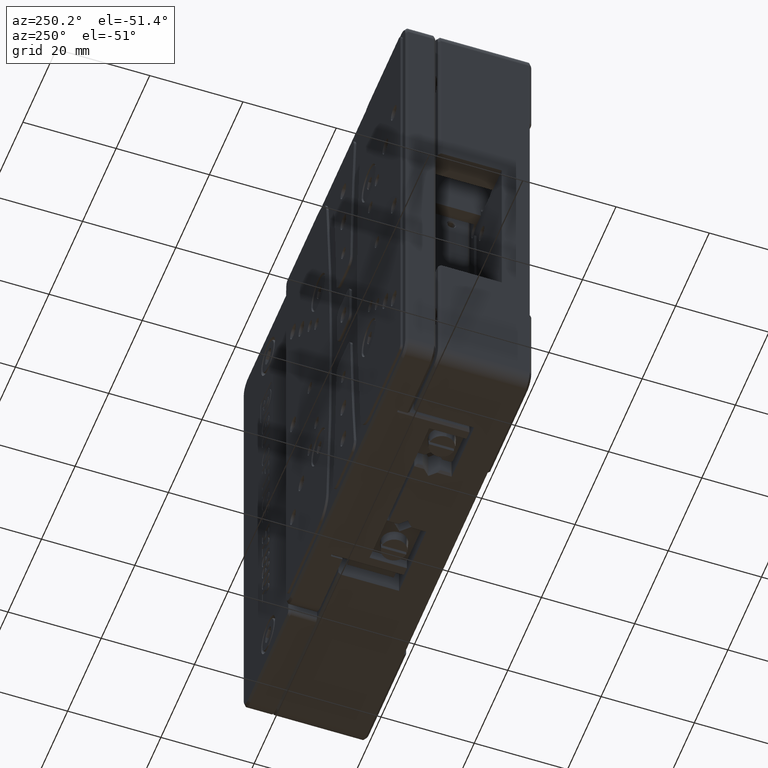
[diagram: clean part render]
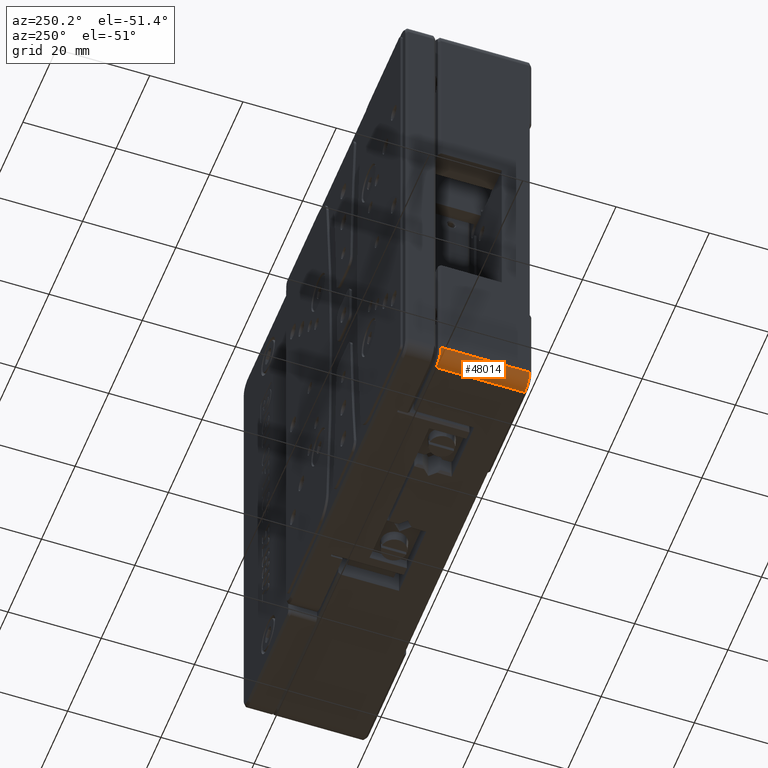
[diagram: same view with one face highlighted and labeled with its STEP entity id]
A machine part, auxiliary view. The second image highlights one B-rep face of the part: STEP entity #48014.
In plain terms, the highlighted cylindrical surface (edge-blend (fillet) strip) has radius 3 mm, axis along (0, -1, 0).
Its self-contained STEP definition (entity closure, byte-faithful):
#351 = CARTESIAN_POINT ( 'NONE',  ( -50.00000178658219596, -0.5000242090757349711, -49.49999999379789983 ) ) ;
#988 = EDGE_CURVE ( 'NONE', #31714, #31601, #32405, .T. ) ;
#1163 = ORIENTED_EDGE ( 'NONE', *, *, #4295, .F. ) ;
#1578 = CARTESIAN_POINT ( 'NONE',  ( -49.92191803106838677, -0.5000488344385002337, -50.28524364779969602 ) ) ;
#2760 = CARTESIAN_POINT ( 'NONE',  ( -48.51086639598516825, -19.49996993934980694, -52.12137556940650285 ) ) ;
#2961 = CARTESIAN_POINT ( 'NONE',  ( -47.39270153919131445, -19.49996993934980694, -52.50001877386046800 ) ) ;
#2988 = CARTESIAN_POINT ( 'NONE',  ( -47.00000003169999729, -10.00000000000000000, -52.50000000000000000 ) ) ;
#4295 = EDGE_CURVE ( 'NONE', #47800, #9612, #16811, .T. ) ;
#4788 = CARTESIAN_POINT ( 'NONE',  ( -47.00000002153660006, -19.49997753036515036, -52.50000372375050262 ) ) ;
#8767 = CARTESIAN_POINT ( 'NONE',  ( -50.00000000000001421, -0.5000488344385001227, -49.89269907905705281 ) ) ;
#9493 = CARTESIAN_POINT ( 'NONE',  ( -50.00000178658219596, -0.5000242090757349711, -49.49999999379789983 ) ) ;
#9612 = VERTEX_POINT ( 'NONE', #4788 ) ;
#9953 = VECTOR ( 'NONE', #18103, 1000.000000000000000 ) ;
#13915 = CARTESIAN_POINT ( 'NONE',  ( -48.84365169733909795, -19.49996993934980338, -51.89901554002826600 ) ) ;
#15222 = FACE_OUTER_BOUND ( 'NONE', #38979, .T. ) ;
#16211 = CARTESIAN_POINT ( 'NONE',  ( -47.78524367867464662, -0.5000488344385002337, -52.42191802277096713 ) ) ;
#16688 = CARTESIAN_POINT ( 'NONE',  ( -49.62135917006488484, -0.5000488344385001227, -51.01085693174736235 ) ) ;
#16811 = B_SPLINE_CURVE_WITH_KNOTS ( 'NONE', 3,
 ( #17616, #48363, #32758, #36720, #47868, #13915, #2760, #33015, #2961, #41511 ),
 .UNSPECIFIED., .F., .F.,
 ( 4, 2, 2, 2, 4 ),
 ( 0.0000000000000000000, 0.2500000000000000000, 0.5000000000000000000, 0.7500000000000000000, 1.000000000000000000 ),
 .UNSPECIFIED. ) ;
#17616 = CARTESIAN_POINT ( 'NONE',  ( -50.00000178598009626, -19.49997579179245122, -49.49999999412390395 ) ) ;
#18103 = DIRECTION ( 'NONE',  ( -0.0000000000000000000, -1.000000000000000000, -0.0000000000000000000 ) ) ;
#18934 = DIRECTION ( 'NONE',  ( 0.0000000000000000000, 0.0000000000000000000, -1.000000000000000000 ) ) ;
#19918 = CARTESIAN_POINT ( 'NONE',  ( -48.51085695944640008, -0.5000488344385002337, -52.12135915410015485 ) ) ;
#21564 = DIRECTION ( 'NONE',  ( 0.0000000000000000000, -1.000000000000000000, 0.0000000000000000000 ) ) ;
#23298 = EDGE_CURVE ( 'NONE', #31714, #47800, #47854, .T. ) ;
#23872 = CARTESIAN_POINT ( 'NONE',  ( -47.00000002282929756, -0.5000219114519619534, -52.50000327391249755 ) ) ;
#24543 = AXIS2_PLACEMENT_3D ( 'NONE', #26122, #30338, #18934 ) ;
#26122 = CARTESIAN_POINT ( 'NONE',  ( -47.00000000000000000, -0.5000488344385001227, -49.50000000000000000 ) ) ;
#26378 = CARTESIAN_POINT ( 'NONE',  ( -47.00000002282929756, -0.5000219114519619534, -52.50000327391249755 ) ) ;
#30092 = CYLINDRICAL_SURFACE ( 'NONE', #24543, 3.000000000000002665 ) ;
#30338 = DIRECTION ( 'NONE',  ( 0.0000000000000000000, -1.000000000000000000, 0.0000000000000000000 ) ) ;
#30344 = VECTOR ( 'NONE', #21564, 1000.000000000000000 ) ;
#31601 = VERTEX_POINT ( 'NONE', #26378 ) ;
#31714 = VERTEX_POINT ( 'NONE', #351 ) ;
#32405 = B_SPLINE_CURVE_WITH_KNOTS ( 'NONE', 3,
 ( #9493, #8767, #1578, #16688, #36019, #38774, #19918, #16211, #46448, #23872 ),
 .UNSPECIFIED., .F., .F.,
 ( 4, 2, 2, 2, 4 ),
 ( 0.0000000000000000000, 0.2500000000000000000, 0.5000000000000000000, 0.7500000000000000000, 1.000000000000000000 ),
 .UNSPECIFIED. ) ;
#32758 = CARTESIAN_POINT ( 'NONE',  ( -49.92193631523208808, -19.49996993934980694, -50.28524856709611157 ) ) ;
#33015 = CARTESIAN_POINT ( 'NONE',  ( -47.78524856709609736, -19.49996993934980338, -52.42193631523208808 ) ) ;
#33274 = ORIENTED_EDGE ( 'NONE', *, *, #23298, .F. ) ;
#33841 = ORIENTED_EDGE ( 'NONE', *, *, #42606, .T. ) ;
#35348 = CARTESIAN_POINT ( 'NONE',  ( -50.00000178598009626, -19.49997579179245122, -49.49999999412390395 ) ) ;
#36019 = CARTESIAN_POINT ( 'NONE',  ( -49.39900053506717370, -0.5000488344385002337, -51.34364014911797369 ) ) ;
#36720 = CARTESIAN_POINT ( 'NONE',  ( -49.62137556940650995, -19.49996993934980338, -51.01086639598515404 ) ) ;
#36951 = LINE ( 'NONE', #2988, #9953 ) ;
#38774 = CARTESIAN_POINT ( 'NONE',  ( -48.84364017446742423, -0.5000488344385003447, -51.89900051558602456 ) ) ;
#38979 = EDGE_LOOP ( 'NONE', ( #1163, #33274, #46927, #33841 ) ) ;
#41511 = CARTESIAN_POINT ( 'NONE',  ( -47.00000002153660006, -19.49997753036515036, -52.50000372375050262 ) ) ;
#42606 = EDGE_CURVE ( 'NONE', #31601, #9612, #36951, .T. ) ;
#46448 = CARTESIAN_POINT ( 'NONE',  ( -47.39269911075708563, -0.5000488344385002337, -52.49999999585047306 ) ) ;
#46927 = ORIENTED_EDGE ( 'NONE', *, *, #988, .T. ) ;
#47800 = VERTEX_POINT ( 'NONE', #35348 ) ;
#47854 = LINE ( 'NONE', #48351, #30344 ) ;
#47868 = CARTESIAN_POINT ( 'NONE',  ( -49.39901554002825890, -19.49996993934980694, -51.34365169733911927 ) ) ;
#48014 = ADVANCED_FACE ( 'NONE', ( #15222 ), #30092, .T. ) ;
#48351 = CARTESIAN_POINT ( 'NONE',  ( -50.00000000000000000, -9.999999999997699618, -49.50000000000000000 ) ) ;
#48363 = CARTESIAN_POINT ( 'NONE',  ( -50.00001877386045379, -19.49996993934980694, -49.89270153919131445 ) ) ;